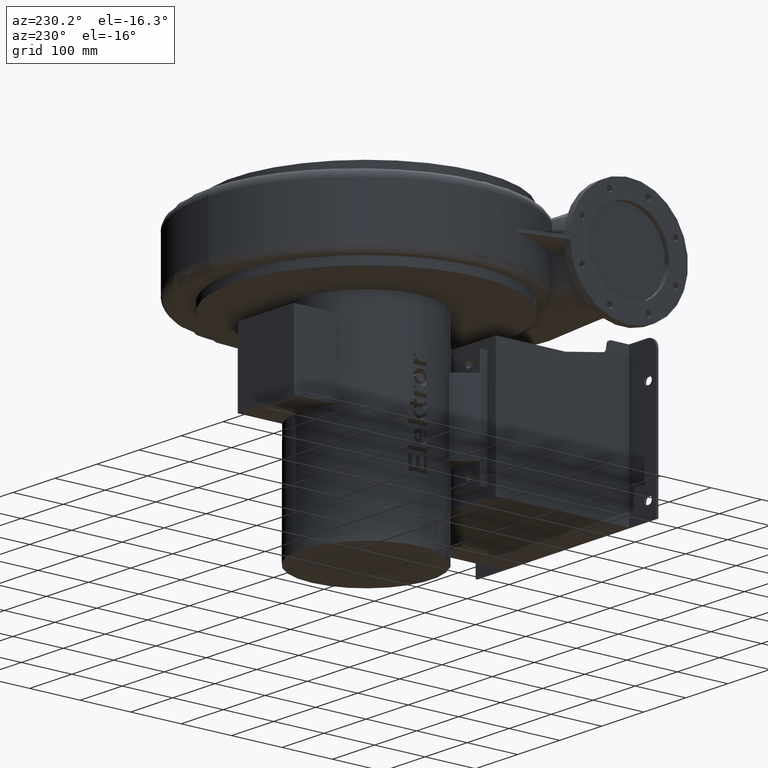
[diagram: clean part render]
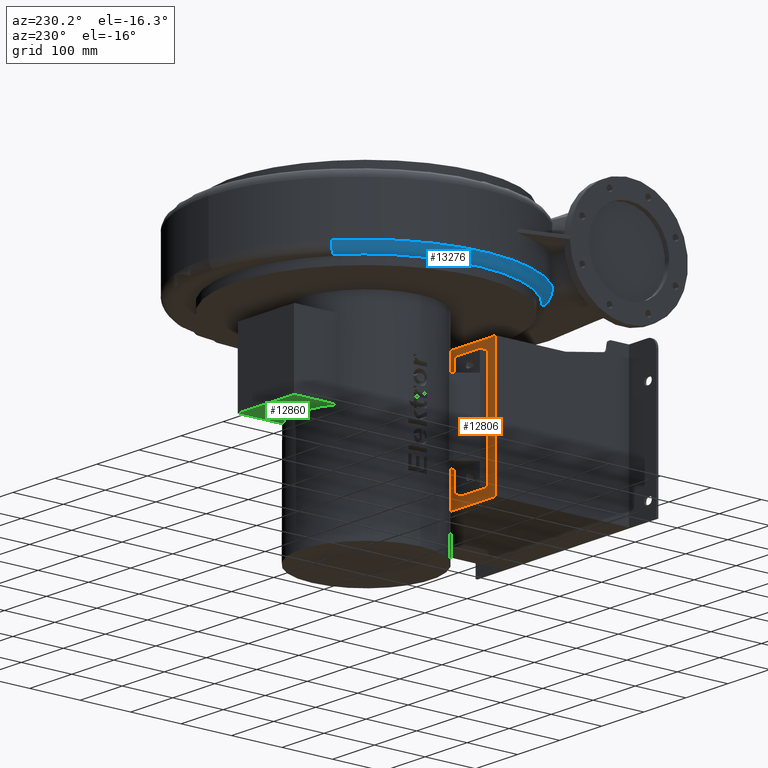
[diagram: same view with three faces highlighted in distinct colors, each labeled with its STEP entity id]
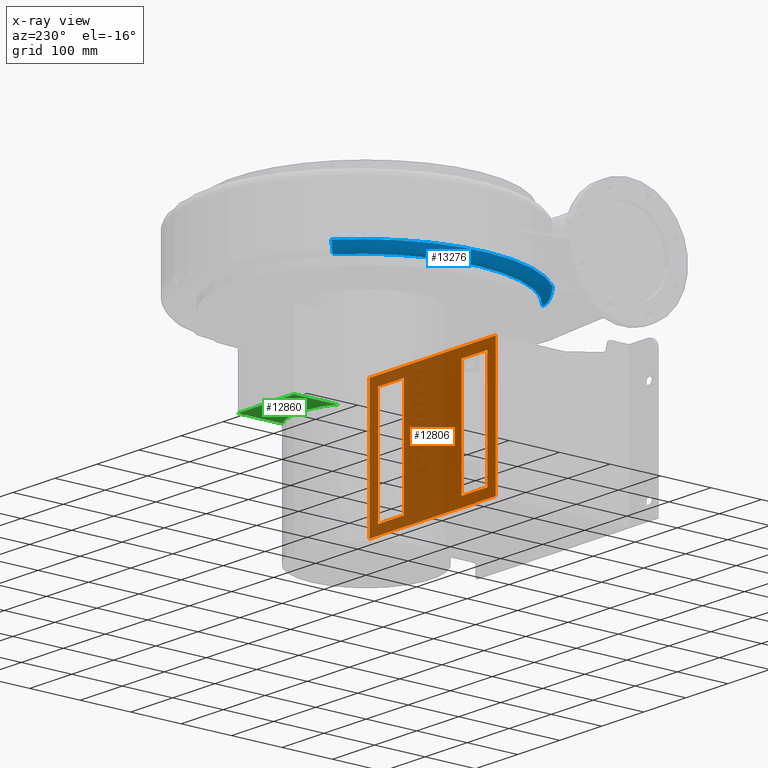
[diagram: x-ray of the same camera — body ghosted, the three highlighted faces saturated]
A machine part, auxiliary view with three faces highlighted in distinct colors.
The next image is the same camera in x-ray (body ghosted, the three faces saturated) — at least one of them is partly hidden behind the body in this view.
Their STEP definitions:

[orange] entity #12806 — the highlighted planar face has unit normal (-0, 1, -0).
#321=LINE('',#18485,#1493);
#322=LINE('',#18487,#1494);
#323=LINE('',#18489,#1495);
#324=LINE('',#18490,#1496);
#325=LINE('',#18493,#1497);
#326=LINE('',#18495,#1498);
#327=LINE('',#18497,#1499);
#328=LINE('',#18498,#1500);
#329=LINE('',#18501,#1501);
#330=LINE('',#18503,#1502);
#331=LINE('',#18505,#1503);
#332=LINE('',#18506,#1504);
#1493=VECTOR('',#14613,300.);
#1494=VECTOR('',#14614,255.);
#1495=VECTOR('',#14615,300.);
#1496=VECTOR('',#14616,255.);
#1497=VECTOR('',#14617,218.);
#1498=VECTOR('',#14618,61.25);
#1499=VECTOR('',#14619,218.);
#1500=VECTOR('',#14620,61.25);
#1501=VECTOR('',#14621,218.);
#1502=VECTOR('',#14622,61.25);
#1503=VECTOR('',#14623,218.);
#1504=VECTOR('',#14624,61.25);
#2955=FACE_BOUND('',#4064,.T.);
#2956=FACE_BOUND('',#4065,.T.);
#3348=FACE_OUTER_BOUND('',#4063,.T.);
#4063=EDGE_LOOP('',(#8804,#8805,#8806,#8807));
#4064=EDGE_LOOP('',(#8808,#8809,#8810,#8811));
#4065=EDGE_LOOP('',(#8812,#8813,#8814,#8815));
#5268=VERTEX_POINT('',#18483);
#5269=VERTEX_POINT('',#18484);
#5270=VERTEX_POINT('',#18486);
#5271=VERTEX_POINT('',#18488);
#5272=VERTEX_POINT('',#18491);
#5273=VERTEX_POINT('',#18492);
#5274=VERTEX_POINT('',#18494);
#5275=VERTEX_POINT('',#18496);
#5276=VERTEX_POINT('',#18499);
#5277=VERTEX_POINT('',#18500);
#5278=VERTEX_POINT('',#18502);
#5279=VERTEX_POINT('',#18504);
#6612=EDGE_CURVE('',#5268,#5269,#321,.T.);
#6613=EDGE_CURVE('',#5270,#5268,#322,.T.);
#6614=EDGE_CURVE('',#5271,#5270,#323,.T.);
#6615=EDGE_CURVE('',#5271,#5269,#324,.T.);
#6616=EDGE_CURVE('',#5272,#5273,#325,.T.);
#6617=EDGE_CURVE('',#5274,#5273,#326,.T.);
#6618=EDGE_CURVE('',#5275,#5274,#327,.T.);
#6619=EDGE_CURVE('',#5272,#5275,#328,.T.);
#6620=EDGE_CURVE('',#5276,#5277,#329,.T.);
#6621=EDGE_CURVE('',#5276,#5278,#330,.T.);
#6622=EDGE_CURVE('',#5278,#5279,#331,.T.);
#6623=EDGE_CURVE('',#5279,#5277,#332,.T.);
#8804=ORIENTED_EDGE('',*,*,#6612,.F.);
#8805=ORIENTED_EDGE('',*,*,#6613,.F.);
#8806=ORIENTED_EDGE('',*,*,#6614,.F.);
#8807=ORIENTED_EDGE('',*,*,#6615,.T.);
#8808=ORIENTED_EDGE('',*,*,#6616,.T.);
#8809=ORIENTED_EDGE('',*,*,#6617,.F.);
#8810=ORIENTED_EDGE('',*,*,#6618,.F.);
#8811=ORIENTED_EDGE('',*,*,#6619,.F.);
#8812=ORIENTED_EDGE('',*,*,#6620,.F.);
#8813=ORIENTED_EDGE('',*,*,#6621,.T.);
#8814=ORIENTED_EDGE('',*,*,#6622,.T.);
#8815=ORIENTED_EDGE('',*,*,#6623,.T.);
#11606=PLANE('',#13462);
#12806=ADVANCED_FACE('',(#3348,#2955,#2956),#11606,.T.);
#13462=AXIS2_PLACEMENT_3D('',#18482,#14611,#14612);
#14611=DIRECTION('center_axis',(-5.64918482363437E-15,1.,-8.69053558503844E-16));
#14612=DIRECTION('ref_axis',(2.8421709430404E-15,0.,1.));
#14613=DIRECTION('',(-1.,-5.17548966646097E-15,2.557266721116E-15));
#14614=DIRECTION('',(2.55726672111599E-15,8.69053558503859E-16,1.));
#14615=DIRECTION('',(1.,5.17548966646097E-15,-2.557266721116E-15));
#14616=DIRECTION('',(2.55726672111599E-15,8.69053558503859E-16,1.));
#14617=DIRECTION('',(-2.557266721116E-15,-4.67343487721602E-16,-1.));
#14618=DIRECTION('',(-1.,-6.65309556112426E-15,2.557266721116E-15));
#14619=DIRECTION('',(-2.557266721116E-15,-4.67343487721602E-16,-1.));
#14620=DIRECTION('',(1.,6.65309556112426E-15,-2.557266721116E-15));
#14621=DIRECTION('',(-2.557266721116E-15,-4.67343487721602E-16,-1.));
#14622=DIRECTION('',(-1.,-6.65309556112426E-15,2.557266721116E-15));
#14623=DIRECTION('',(-2.557266721116E-15,-4.67343487721602E-16,-1.));
#14624=DIRECTION('',(1.,6.65309556112426E-15,-2.557266721116E-15));
#18482=CARTESIAN_POINT('Origin',(-150.000000000001,267.999999999999,1.50683654488369E-13));
#18483=CARTESIAN_POINT('',(149.999999999999,268.000000000001,254.999999999999));
#18484=CARTESIAN_POINT('',(-150.000000000001,267.999999999999,255.));
#18485=CARTESIAN_POINT('',(-7.98403367788197E-13,268.,255.));
#18486=CARTESIAN_POINT('',(149.999999999999,268.000000000001,-6.1649636184643E-13));
#18487=CARTESIAN_POINT('',(149.999999999999,268.000000000001,-6.1649636184643E-13));
#18488=CARTESIAN_POINT('',(-150.000000000001,267.999999999999,1.50683654488369E-13));
#18489=CARTESIAN_POINT('',(-1.45050638167278E-12,268.,-2.3290635367903E-13));
#18490=CARTESIAN_POINT('',(-150.000000000001,267.999999999999,1.50683654488369E-13));
#18491=CARTESIAN_POINT('',(68.7500000000012,268.,236.499999999999));
#18492=CARTESIAN_POINT('',(68.7500000000006,267.999999999999,18.4999999999989));
#18493=CARTESIAN_POINT('',(68.7500000000012,268.,236.499999999999));
#18494=CARTESIAN_POINT('',(130.000000000001,268.,18.4999999999987));
#18495=CARTESIAN_POINT('',(68.7500000000006,267.999999999999,18.4999999999989));
#18496=CARTESIAN_POINT('',(130.000000000001,268.,236.499999999999));
#18497=CARTESIAN_POINT('',(130.000000000001,268.,236.499999999999));
#18498=CARTESIAN_POINT('',(68.7500000000012,268.,236.499999999999));
#18499=CARTESIAN_POINT('',(-68.7499999999988,267.999999999999,236.499999999999));
#18500=CARTESIAN_POINT('',(-68.7499999999994,267.999999999999,18.4999999999992));
#18501=CARTESIAN_POINT('',(-68.7499999999988,267.999999999999,236.499999999999));
#18502=CARTESIAN_POINT('',(-129.999999999999,267.999999999998,236.499999999999));
#18503=CARTESIAN_POINT('',(-68.7499999999988,267.999999999999,236.499999999999));
#18504=CARTESIAN_POINT('',(-129.999999999999,267.999999999998,18.4999999999994));
#18505=CARTESIAN_POINT('',(-129.999999999999,267.999999999998,236.499999999999));
#18506=CARTESIAN_POINT('',(-68.7499999999994,267.999999999999,18.4999999999992));

[blue] entity #13276 — the highlighted toroidal blend (fillet) surface has major radius 278 mm and minor (blend) radius 18 mm.
#28=TOROIDAL_SURFACE('',#14000,278.,18.);
#2732=B_SPLINE_CURVE_WITH_KNOTS('',3,(#22881,#22882,#22883,#22884,#22885,
#22886,#22887,#22888,#22889,#22890,#22891,#22892,#22893,#22894),
 .UNSPECIFIED.,.F.,.F.,(4,2,2,2,2,2,4),(-2.83488507095363,-2.83196573091535,
-2.47067996930005,-2.10940029012754,-1.40617260276223,-0.703058523195238,
0.),.UNSPECIFIED.);
#2733=B_SPLINE_CURVE_WITH_KNOTS('',3,(#22906,#22907,#22908,#22909,#22910,
#22911,#22912,#22913,#22914,#22915),.UNSPECIFIED.,.F.,.F.,(4,2,2,2,4),(2.87281943594026,
3.13294065396559,4.08331377113632,6.53272554724598,6.822904306382),
 .UNSPECIFIED.);
#2734=B_SPLINE_CURVE_WITH_KNOTS('',3,(#22917,#22918,#22919,#22920,#22921,
#22922,#22923),.UNSPECIFIED.,.F.,.F.,(4,3,4),(0.,0.58524547522901,1.11057846980261),
 .UNSPECIFIED.);
#3818=FACE_OUTER_BOUND('',#4640,.T.);
#4640=EDGE_LOOP('',(#11278,#11279,#11280,#11281,#11282));
#4922=CIRCLE('',#14001,296.);
#4923=CIRCLE('',#14002,278.);
#6101=VERTEX_POINT('',#22861);
#6107=VERTEX_POINT('',#22879);
#6110=VERTEX_POINT('',#22904);
#6111=VERTEX_POINT('',#22905);
#6112=VERTEX_POINT('',#22916);
#7857=EDGE_CURVE('',#6107,#6101,#2732,.T.);
#7862=EDGE_CURVE('',#6110,#6111,#2733,.T.);
#7863=EDGE_CURVE('',#6111,#6112,#2734,.T.);
#7864=EDGE_CURVE('',#6112,#6101,#4922,.T.);
#7865=EDGE_CURVE('',#6107,#6110,#4923,.T.);
#11278=ORIENTED_EDGE('',*,*,#7862,.T.);
#11279=ORIENTED_EDGE('',*,*,#7863,.T.);
#11280=ORIENTED_EDGE('',*,*,#7864,.T.);
#11281=ORIENTED_EDGE('',*,*,#7857,.F.);
#11282=ORIENTED_EDGE('',*,*,#7865,.T.);
#13276=ADVANCED_FACE('',(#3818),#28,.T.);
#14000=AXIS2_PLACEMENT_3D('',#22903,#16559,#16560);
#14001=AXIS2_PLACEMENT_3D('',#22924,#16561,#16562);
#14002=AXIS2_PLACEMENT_3D('',#22925,#16563,#16564);
#16559=DIRECTION('center_axis',(2.21867473071667E-15,4.67343487721603E-16,
1.));
#16560=DIRECTION('ref_axis',(1.,5.37708016250887E-15,-2.30446292678951E-15));
#16561=DIRECTION('center_axis',(-2.21867473071667E-15,-4.67343487721603E-16,
-1.));
#16562=DIRECTION('ref_axis',(-0.951002462149346,-0.309183306447618,2.25445993640062E-15));
#16563=DIRECTION('center_axis',(2.21867473071667E-15,4.67343487721603E-16,
1.));
#16564=DIRECTION('ref_axis',(-0.951002462149346,-0.309183306447618,2.25445993640062E-15));
#22861=CARTESIAN_POINT('',(-182.436189410375,620.533333333331,333.499999999998));
#22879=CARTESIAN_POINT('',(-170.194192373545,607.333333333331,315.499999999998));
#22881=CARTESIAN_POINT('Ctrl Pts',(-170.194192373545,607.333333333331,315.499999999998));
#22882=CARTESIAN_POINT('Ctrl Pts',(-170.200809662018,607.340468293107,315.499999999998));
#22883=CARTESIAN_POINT('Ctrl Pts',(-170.20742694941,607.347603251943,315.500007888581));
#22884=CARTESIAN_POINT('Ctrl Pts',(-171.032972077221,608.23773095258,315.501976183222));
#22885=CARTESIAN_POINT('Ctrl Pts',(-171.84970460948,609.118361118498,315.624741548011));
#22886=CARTESIAN_POINT('Ctrl Pts',(-173.45420483199,610.848398646178,316.108210179146));
#22887=CARTESIAN_POINT('Ctrl Pts',(-174.237936358482,611.693454040339,316.467693125617));
#22888=CARTESIAN_POINT('Ctrl Pts',(-176.457925120651,614.087158007036,317.857954400443));
#22889=CARTESIAN_POINT('Ctrl Pts',(-177.788490411537,615.521854007125,319.188790783331));
#22890=CARTESIAN_POINT('Ctrl Pts',(-180.027640190291,617.936253097342,322.525339934381));
#22891=CARTESIAN_POINT('Ctrl Pts',(-180.914885154214,618.892946161307,324.499046078153));
#22892=CARTESIAN_POINT('Ctrl Pts',(-182.124925693889,620.197703644619,328.83536834834));
#22893=CARTESIAN_POINT('Ctrl Pts',(-182.436189410376,620.533333333331,331.156471589347));
#22894=CARTESIAN_POINT('Ctrl Pts',(-182.436189410376,620.533333333331,333.499999999998));
#22903=CARTESIAN_POINT('Origin',(14.9999999999992,399.999999999999,333.499999999998));
#22904=CARTESIAN_POINT('',(-157.588799063889,182.061691211284,315.499999999998));
#22905=CARTESIAN_POINT('',(-197.292810621574,196.829918451584,324.964277098974));
#22906=CARTESIAN_POINT('Ctrl Pts',(-157.588799063889,182.061691211284,315.499999999998));
#22907=CARTESIAN_POINT('Ctrl Pts',(-158.281740145089,182.031113198182,315.499999999998));
#22908=CARTESIAN_POINT('Ctrl Pts',(-158.984072461399,182.049089886707,315.517219354544));
#22909=CARTESIAN_POINT('Ctrl Pts',(-162.130596976641,182.261811851737,315.644157039344));
#22910=CARTESIAN_POINT('Ctrl Pts',(-165.02322275225,182.851456025366,315.908104073923));
#22911=CARTESIAN_POINT('Ctrl Pts',(-175.885029561553,185.881236469946,317.377740216558));
#22912=CARTESIAN_POINT('Ctrl Pts',(-185.812435497065,190.094308184646,319.569810832396));
#22913=CARTESIAN_POINT('Ctrl Pts',(-195.33259880457,195.622461671604,323.957174964539));
#22914=CARTESIAN_POINT('Ctrl Pts',(-196.324582548092,196.22075816447,324.447540645031));
#22915=CARTESIAN_POINT('Ctrl Pts',(-197.292810621574,196.829918451584,324.964277098974));
#22916=CARTESIAN_POINT('',(-203.377529105145,200.181945805859,333.499999999998));
#22917=CARTESIAN_POINT('Ctrl Pts',(-197.292810621574,196.829918451584,324.964277098974));
#22918=CARTESIAN_POINT('Ctrl Pts',(-198.696258452874,197.30900456663,326.231755906175));
#22919=CARTESIAN_POINT('Ctrl Pts',(-199.97939968039,197.857513333491,327.629620421866));
#22920=CARTESIAN_POINT('Ctrl Pts',(-201.053458763636,198.455624286029,329.140487993853));
#22921=CARTESIAN_POINT('Ctrl Pts',(-202.017564764218,198.992505699219,330.496685725614));
#22922=CARTESIAN_POINT('Ctrl Pts',(-202.823891377623,199.575402208024,331.959694955148));
#22923=CARTESIAN_POINT('Ctrl Pts',(-203.377529105145,200.180008990345,333.501136288642));
#22924=CARTESIAN_POINT('Origin',(14.9999999999992,399.999999999999,333.499999999998));
#22925=CARTESIAN_POINT('Origin',(14.9999999999992,399.999999999999,315.499999999998));

[green] entity #12860 — the highlighted planar face has unit normal (0, 0, -1).
#426=LINE('',#18796,#1598);
#429=LINE('',#18807,#1601);
#430=LINE('',#18808,#1602);
#1598=VECTOR('',#14910,85.5728937825273);
#1601=VECTOR('',#14921,134.);
#1602=VECTOR('',#14922,88.0045872524904);
#3402=FACE_OUTER_BOUND('',#4135,.T.);
#4135=EDGE_LOOP('',(#9080,#9081,#9082,#9083));
#4813=CIRCLE('',#13562,129.);
#5377=VERTEX_POINT('',#18790);
#5379=VERTEX_POINT('',#18794);
#5382=VERTEX_POINT('',#18804);
#5383=VERTEX_POINT('',#18806);
#6761=EDGE_CURVE('',#5377,#5379,#426,.T.);
#6765=EDGE_CURVE('',#5377,#5382,#4813,.T.);
#6766=EDGE_CURVE('',#5379,#5383,#429,.T.);
#6767=EDGE_CURVE('',#5382,#5383,#430,.T.);
#9080=ORIENTED_EDGE('',*,*,#6765,.F.);
#9081=ORIENTED_EDGE('',*,*,#6761,.T.);
#9082=ORIENTED_EDGE('',*,*,#6766,.T.);
#9083=ORIENTED_EDGE('',*,*,#6767,.F.);
#11642=PLANE('',#13561);
#12860=ADVANCED_FACE('',(#3402),#11642,.T.);
#13561=AXIS2_PLACEMENT_3D('',#18803,#14917,#14918);
#13562=AXIS2_PLACEMENT_3D('',#18805,#14919,#14920);
#14910=DIRECTION('',(-7.20820707343683E-15,1.,1.39712484895353E-30));
#14917=DIRECTION('center_axis',(1.7500641082711E-16,2.65860729737429E-30,
-1.));
#14918=DIRECTION('ref_axis',(-7.105427357601E-15,1.,0.));
#14919=DIRECTION('center_axis',(1.7500641082711E-16,2.65860729737429E-30,
-1.));
#14920=DIRECTION('ref_axis',(1.,6.65309556112426E-15,-2.557266721116E-15));
#14921=DIRECTION('',(1.,7.20820707343683E-15,1.7500641082711E-16));
#14922=DIRECTION('',(-7.20820707343683E-15,1.,1.39712484895353E-30));
#18790=CARTESIAN_POINT('',(-65.0000000000009,511.427106217471,118.999999999998));
#18794=CARTESIAN_POINT('',(-65.0000000000015,596.999999999999,118.999999999998));
#18796=CARTESIAN_POINT('',(-65.0000000000001,399.999999999999,118.999999999998));
#18803=CARTESIAN_POINT('Origin',(-65.0000000000001,399.999999999999,118.999999999998));
#18804=CARTESIAN_POINT('',(68.9999999999991,508.995412747509,118.999999999998));
#18805=CARTESIAN_POINT('Origin',(2.46964995745477E-15,399.999999999999,
118.999999999997));
#18806=CARTESIAN_POINT('',(68.9999999999985,597.,118.999999999998));
#18807=CARTESIAN_POINT('',(-65.0000000000015,596.999999999999,118.999999999998));
#18808=CARTESIAN_POINT('',(68.9999999999999,400.,118.999999999998));